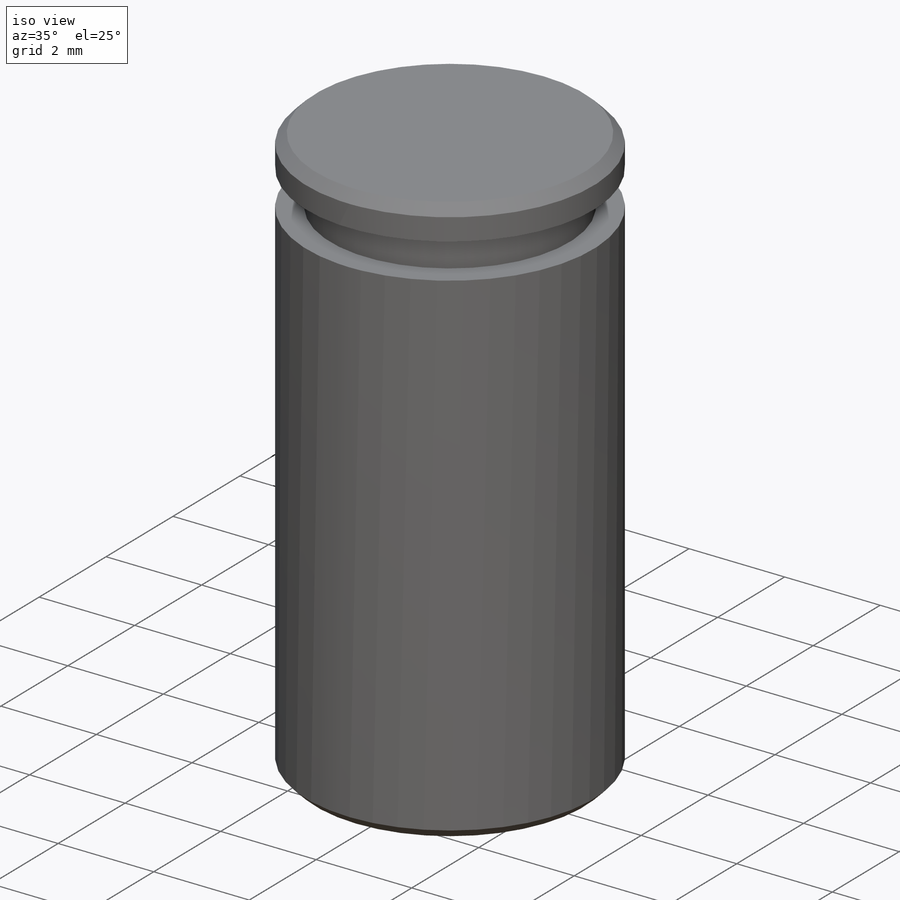
[diagram: iso view]
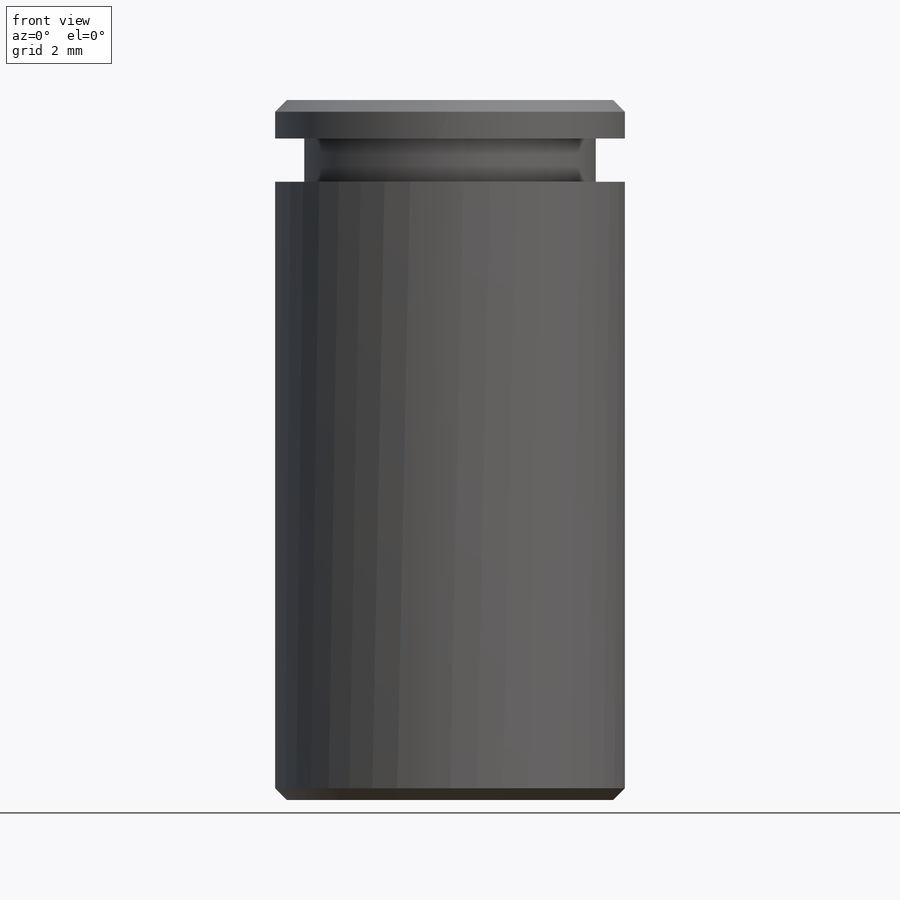
[diagram: front view]
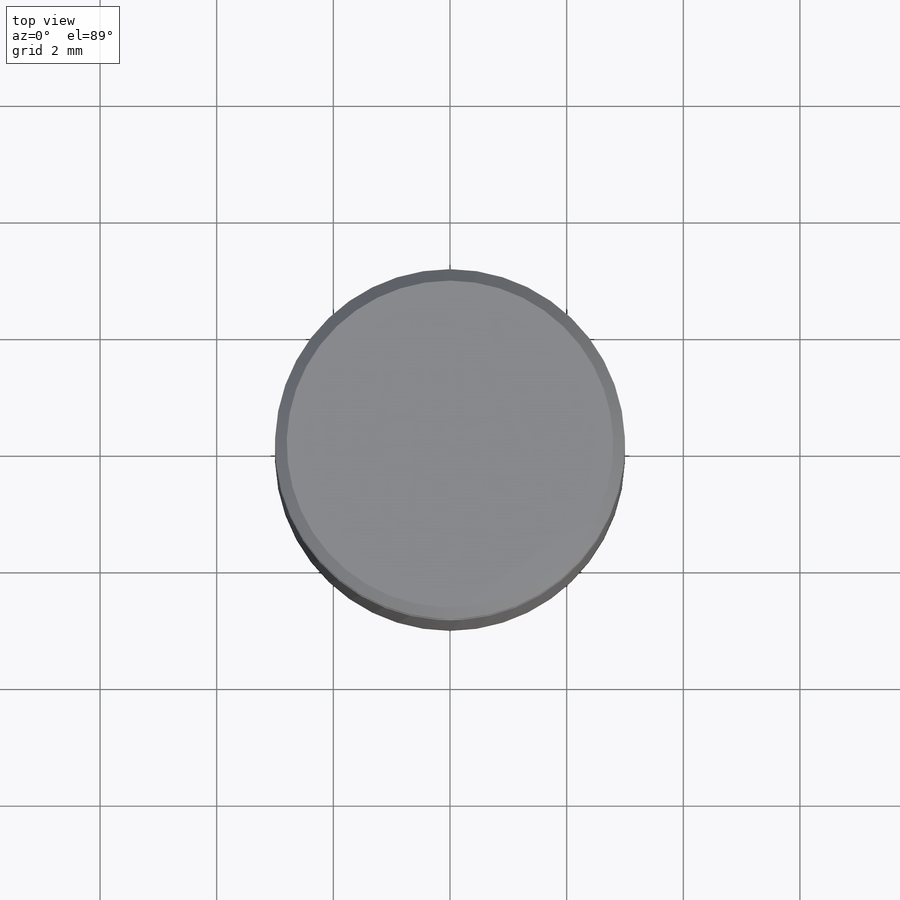
[diagram: top view]
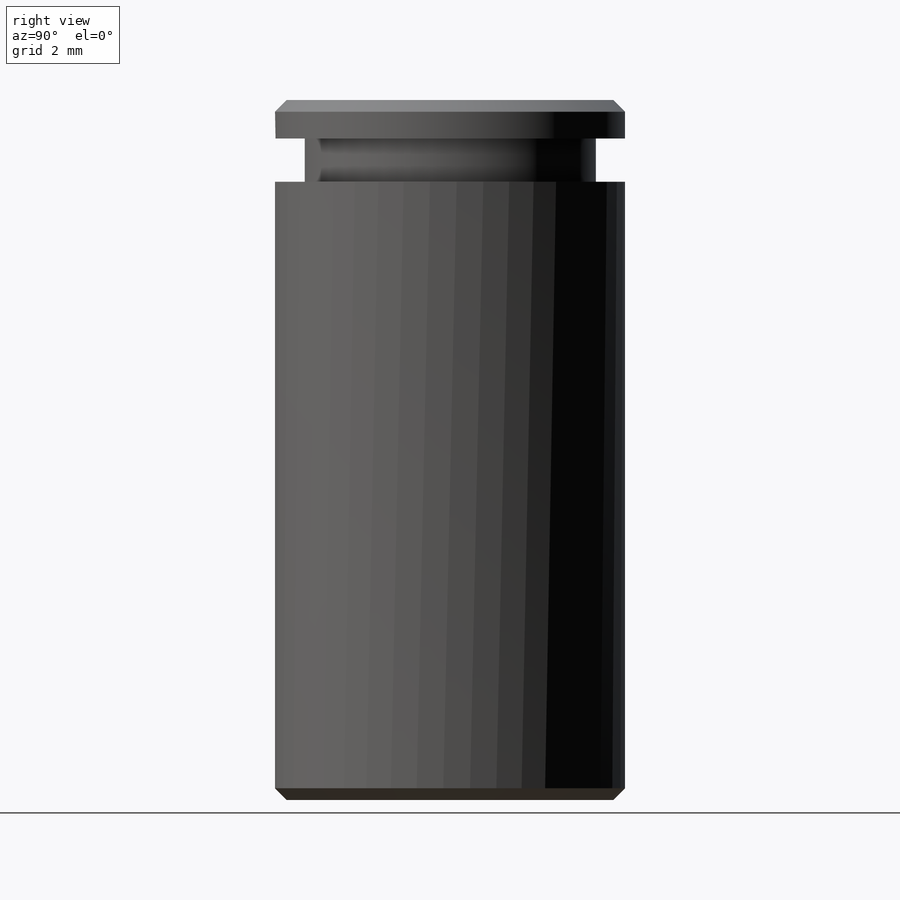
[diagram: right view]
SOLIDWORKS PART (.sldprt)
format: sldprt  version: not decoded by parser v0  size: 172,544 bytes
history: native  units: mm
features: cut_revolve x10, sketch x2, plane x2, material x1, revolve x1, chamfer x1 (+12 scaffold rows collapsed)
feature tree (29):
  scaffold x12  (default folders/planes/origin — collapsed)
  material  "1060 Alloy"
  sketch  "Sketch1"  dims[D1=12.0mm D2=6.0mm]
  revolve  "Revolve1"  Angle=360deg
  plane  "Plane1"
  plane  "Plane2"
  sketch  "Sketch5"  dims[c1.D1=0.05mm c1.D2=0.05mm c1.D3=10.6mm c1.D4=2.5mm c1.D5=0.74mm c1.D6=2.0mm c2.D1=2.05mm]
  cut_revolve  "Groove for DIN 471 - 4 x 0.4, Circlip for shafts - normal1"  [1 undecoded]
  cut_revolve  "CurrentVersion"  [1 undecoded]
  cut_revolve  "EditFunction"  [1 undecoded]
  cut_revolve  "Type"  [1 undecoded]
  cut_revolve  "SubType"  [1 undecoded]
  cut_revolve  "Application"  [1 undecoded]
  cut_revolve  "CurrentVersion"  [1 undecoded]
  cut_revolve  "EditFunction"  [1 undecoded]
  cut_revolve  "Type"  [1 undecoded]
  cut_revolve  "SubType"  Angle=360deg
  chamfer  "Chanfrein1"  Distance=0.2mm Angle=45deg
decode coverage: 5 of 14 modeling features carry decoded parameters
note: 9 parameter values undecoded
summary: no parameter record found for 9 features
note: suppression state not decoded; provenance and decode notes live in map.json
